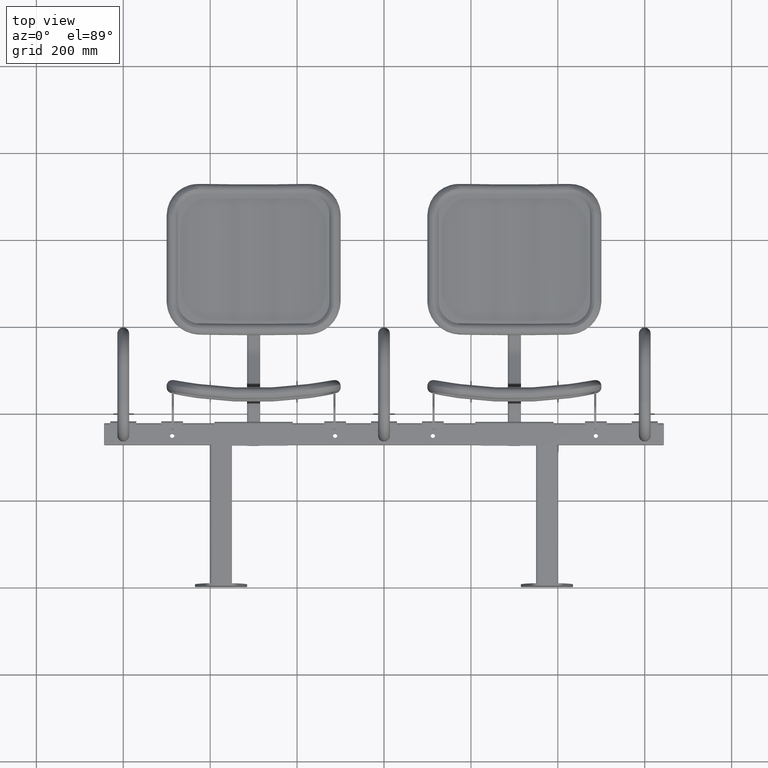
[diagram: clean part render]
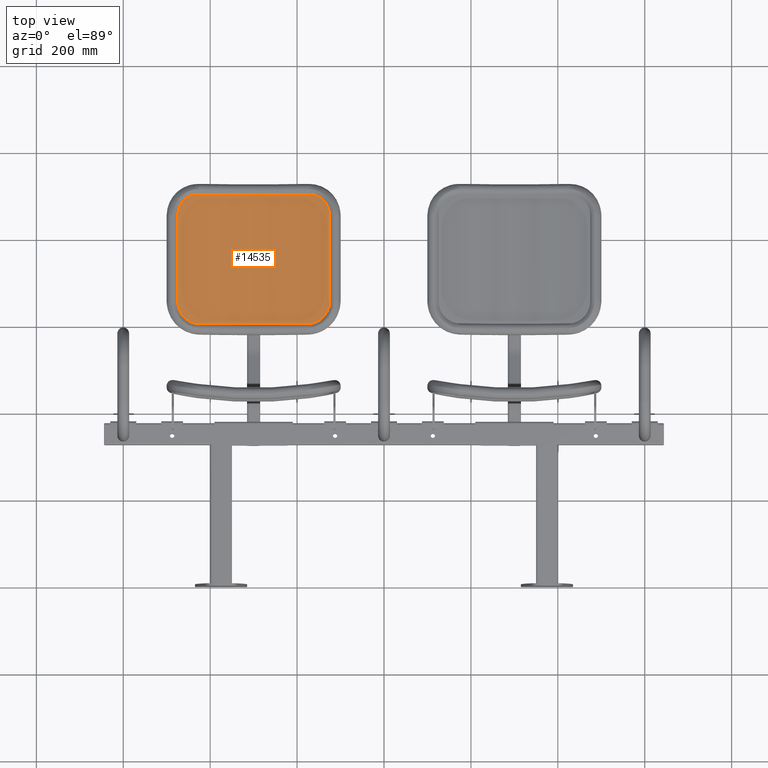
[diagram: same view with one face highlighted and labeled with its STEP entity id]
A machine part, top view. The second image highlights one B-rep face of the part: STEP entity #14535.
In plain terms, the highlighted cylindrical surface (partial cylindrical patch) has radius 922 mm, axis along (-0, 0.9925, -0.1219).
Its self-contained STEP definition (entity closure, byte-faithful):
#141 = AXIS2_PLACEMENT_3D ( 'NONE', #11130, #11125, #11127 ) ;
#270 = CARTESIAN_POINT ( 'NONE',  ( 133.5027708095076700, -4.043348160161209600, -150.0000000000000000 ) ) ;
#632 = CARTESIAN_POINT ( 'NONE',  ( 174.6780423094294300, 2.938127989232640800, 100.0000000000000000 ) ) ;
#2118 = VERTEX_POINT ( 'NONE', #270 ) ;
#3340 = EDGE_CURVE ( 'NONE', #15941, #15935, #9553, .T. ) ;
#3349 = EDGE_CURVE ( 'NONE', #15935, #15936, #4470, .T. ) ;
#3350 = EDGE_CURVE ( 'NONE', #15947, #2118, #4465, .T. ) ;
#4465 = CIRCLE ( 'NONE', #5178, 921.9999999999998900 ) ;
#4470 = CIRCLE ( 'NONE', #5177, 921.9999999999998900 ) ;
#5177 = AXIS2_PLACEMENT_3D ( 'NONE', #16096, #16097, #16098 ) ;
#5178 = AXIS2_PLACEMENT_3D ( 'NONE', #16101, #16102, #16103 ) ;
#5817 = CARTESIAN_POINT ( 'NONE',  ( 174.6780423094293400, 2.938127989232677700, -102.9767111701996900 ) ) ;
#5819 = CARTESIAN_POINT ( 'NONE',  ( 174.6780423094277000, 2.938127989229069900, -100.0000000000000000 ) ) ;
#5871 = CARTESIAN_POINT ( 'NONE',  ( 174.4252569109687800, 2.889249156995799400, -105.9095809351519500 ) ) ;
#5873 = CARTESIAN_POINT ( 'NONE',  ( 173.6823065029261100, 2.746533479585206100, -110.2458254922048400 ) ) ;
#5874 = CARTESIAN_POINT ( 'NONE',  ( 173.3736626402040300, 2.687343729852856200, -111.6806676315718500 ) ) ;
#5876 = CARTESIAN_POINT ( 'NONE',  ( 172.8179272435431000, 2.581180420399842700, -113.8168594006251100 ) ) ;
#5878 = CARTESIAN_POINT ( 'NONE',  ( 172.6171985542212000, 2.542893235740705000, -114.5262409831928100 ) ) ;
#5880 = CARTESIAN_POINT ( 'NONE',  ( 172.1842845498676400, 2.460491188602074600, -115.9395566754920600 ) ) ;
#5882 = CARTESIAN_POINT ( 'NONE',  ( 171.9515861540681700, 2.416279086558696900, -116.6449153591403000 ) ) ;
#5884 = CARTESIAN_POINT ( 'NONE',  ( 170.7138823299352700, 2.181677444009757900, -120.1406797326989000 ) ) ;
#5886 = CARTESIAN_POINT ( 'NONE',  ( 169.4991983137305700, 1.953047274785819400, -122.8105190491347500 ) ) ;
#5888 = CARTESIAN_POINT ( 'NONE',  ( 167.3512060475766000, 1.554827582412844600, -126.6316484380882800 ) ) ;
#5890 = CARTESIAN_POINT ( 'NONE',  ( 166.5805605887740900, 1.412827841483002900, -127.8745735445691900 ) ) ;
#5892 = CARTESIAN_POINT ( 'NONE',  ( 165.3411140186353800, 1.186313528368801600, -129.6919993142205100 ) ) ;
#5894 = CARTESIAN_POINT ( 'NONE',  ( 164.9140322696746600, 1.108553735959722200, -130.2899698321673700 ) ) ;
#5896 = CARTESIAN_POINT ( 'NONE',  ( 164.0315003009444900, 0.9485552417487855800, -131.4699633020638000 ) ) ;
#5897 = CARTESIAN_POINT ( 'NONE',  ( 163.5748653853536300, 0.8661043752936908900, -132.0533764078747100 ) ) ;
#5898 = CARTESIAN_POINT ( 'NONE',  ( 161.2387529999138600, 0.4462085634064498800, -134.9061564388811700 ) ) ;
#5899 = CARTESIAN_POINT ( 'NONE',  ( 159.1978465308786500, 0.08529606656501249900, -136.9917475094728700 ) ) ;
#5901 = CARTESIAN_POINT ( 'NONE',  ( 155.8851279581342100, -0.4871208554714147000, -139.8338622777737000 ) ) ;
#5902 = CARTESIAN_POINT ( 'NONE',  ( 154.7387530509506600, -0.6831380520290655200, -140.7332446702119200 ) ) ;
#5903 = CARTESIAN_POINT ( 'NONE',  ( 152.9546340337428200, -0.9844723836857178800, -142.0089234182692900 ) ) ;
#5905 = CARTESIAN_POINT ( 'NONE',  ( 152.3491529466003600, -1.086137138710676600, -142.4218997634149800 ) ) ;
#5907 = CARTESIAN_POINT ( 'NONE',  ( 151.1162202790401100, -1.291844430166143600, -143.2228952222699800 ) ) ;
#5908 = CARTESIAN_POINT ( 'NONE',  ( 150.4883261064795800, -1.395955851073583900, -143.6110605275198400 ) ) ;
#5909 = CARTESIAN_POINT ( 'NONE',  ( 147.3253740385165700, -1.916968884661652400, -145.4697822865375400 ) ) ;
#5910 = CARTESIAN_POINT ( 'NONE',  ( 144.6960490761461800, -2.339245843048198800, -146.7123967559648200 ) ) ;
#5912 = CARTESIAN_POINT ( 'NONE',  ( 140.6068619629395800, -2.976500450835516600, -148.2193977601141100 ) ) ;
#5913 = CARTESIAN_POINT ( 'NONE',  ( 139.2194630377412600, -3.189579564213771900, -148.6619021252992600 ) ) ;
#5914 = CARTESIAN_POINT ( 'NONE',  ( 136.3948739619451400, -3.616554344970484000, -149.4247097407211700 ) ) ;
#5916 = CARTESIAN_POINT ( 'NONE',  ( 134.9540972695986100, -3.830962291024167900, -149.7453999577484500 ) ) ;
#5918 = CARTESIAN_POINT ( 'NONE',  ( 133.5027708095076700, -4.043348160161209600, -150.0000000000000000 ) ) ;
#6001 = CARTESIAN_POINT ( 'NONE',  ( 174.6780423094276400, 2.938127989229100100, 0.0000000000000000000 ) ) ;
#6057 = DIRECTION ( 'NONE',  ( -0.0000000000000000000, -0.0000000000000000000, -1.000000000000000000 ) ) ;
#6063 = CARTESIAN_POINT ( 'NONE',  ( -136.4044524121475800, -3.618718563662579600, -149.4909703096117000 ) ) ;
#6073 = CARTESIAN_POINT ( 'NONE',  ( -133.5027708095150300, -4.043348160158284800, -150.0000000000000000 ) ) ;
#6080 = CARTESIAN_POINT ( 'NONE',  ( -139.2157402112301000, -3.193201298298841800, -148.7300908071784700 ) ) ;
#6082 = CARTESIAN_POINT ( 'NONE',  ( -143.3031395745495900, -2.556359719185635500, -147.2267049283003600 ) ) ;
#6084 = CARTESIAN_POINT ( 'NONE',  ( -144.6438899564408000, -2.344332376845247100, -146.6648703919832100 ) ) ;
#6087 = CARTESIAN_POINT ( 'NONE',  ( -146.6220860598248200, -2.027162559964417200, -145.7298554267849800 ) ) ;
#6090 = CARTESIAN_POINT ( 'NONE',  ( -147.2759889221212900, -1.921585602901901400, -145.4027849053079300 ) ) ;
#6092 = CARTESIAN_POINT ( 'NONE',  ( -148.5726483527038200, -1.710821201565750500, -144.7173727561183200 ) ) ;
#6095 = CARTESIAN_POINT ( 'NONE',  ( -149.2169678934316400, -1.605374842082262400, -144.3580730241737600 ) ) ;
#6098 = CARTESIAN_POINT ( 'NONE',  ( -152.3844638327494200, -1.083632167137132500, -142.4972107034067800 ) ) ;
#6101 = CARTESIAN_POINT ( 'NONE',  ( -154.7532591195762600, -0.6826354278457768000, -140.8022876210274600 ) ) ;
#6104 = CARTESIAN_POINT ( 'NONE',  ( -158.0685886014815900, -0.1098646472610107000, -137.9618855153419800 ) ) ;
#6107 = CARTESIAN_POINT ( 'NONE',  ( -159.1338203578423800, 0.07624399679278519300, -136.9651220025052700 ) ) ;
#6110 = CARTESIAN_POINT ( 'NONE',  ( -160.6710205796737200, 0.3473898814974699700, -135.3938462974307700 ) ) ;
#6112 = CARTESIAN_POINT ( 'NONE',  ( -161.1732984616822900, 0.4364335548314541800, -134.8573813391294900 ) ) ;
#6115 = CARTESIAN_POINT ( 'NONE',  ( -162.1572907833169400, 0.6116837531127629100, -133.7586132477186700 ) ) ;
#6118 = CARTESIAN_POINT ( 'NONE',  ( -162.6382829059245400, 0.6977635892723492700, -133.1969790404442600 ) ) ;
#6121 = CARTESIAN_POINT ( 'NONE',  ( -164.9687295435143100, 1.116632361648125300, -130.3517139942909200 ) ) ;
#6124 = CARTESIAN_POINT ( 'NONE',  ( -166.6149145823608800, 1.418353854519800900, -127.9372995264752000 ) ) ;
#6127 = CARTESIAN_POINT ( 'NONE',  ( -168.7673811361679800, 1.817360527010247500, -124.1144138570340200 ) ) ;
#6130 = CARTESIAN_POINT ( 'NONE',  ( -169.4317598822122500, 1.941394612183192000, -122.8063802993798100 ) ) ;
#6132 = CARTESIAN_POINT ( 'NONE',  ( -170.6523357711537900, 2.170431089114700700, -120.1215041083181900 ) ) ;
#6135 = CARTESIAN_POINT ( 'NONE',  ( -171.2095691463161700, 2.275633990467209600, -118.7401357903834500 ) ) ;
#6138 = CARTESIAN_POINT ( 'NONE',  ( -172.6868317126451300, 2.555639529861443800, -114.5693454951728300 ) ) ;
#6141 = CARTESIAN_POINT ( 'NONE',  ( -173.4255939864389100, 2.697224416701996300, -111.7314858990513500 ) ) ;
#6144 = CARTESIAN_POINT ( 'NONE',  ( -174.1725968260297700, 2.840713097092864000, -107.3904394198565100 ) ) ;
#6147 = CARTESIAN_POINT ( 'NONE',  ( -174.3610627241996300, 2.877015158256031500, -105.9293014465063200 ) ) ;
#6150 = CARTESIAN_POINT ( 'NONE',  ( -174.5507831765804400, 2.913580320993418100, -103.7158953305182900 ) ) ;
#6152 = CARTESIAN_POINT ( 'NONE',  ( -174.5985353192888900, 2.922790154322341600, -102.9733979338756000 ) ) ;
#6155 = CARTESIAN_POINT ( 'NONE',  ( -174.6621354910554700, 2.935058333662315300, -101.4874028404083200 ) ) ;
#6158 = CARTESIAN_POINT ( 'NONE',  ( -174.6780423094276700, 2.938127989229069900, -100.7439361827915900 ) ) ;
#6161 = CARTESIAN_POINT ( 'NONE',  ( -174.6780423094277000, 2.938127989229081900, -100.0000000000000000 ) ) ;
#6168 = ORIENTED_EDGE ( 'NONE', *, *, #17051, .T. ) ;
#6172 = ORIENTED_EDGE ( 'NONE', *, *, #3349, .T. ) ;
#6175 = ORIENTED_EDGE ( 'NONE', *, *, #3340, .T. ) ;
#6178 = ORIENTED_EDGE ( 'NONE', *, *, #17055, .T. ) ;
#6181 = ORIENTED_EDGE ( 'NONE', *, *, #17042, .T. ) ;
#6184 = ORIENTED_EDGE ( 'NONE', *, *, #3350, .F. ) ;
#6186 = ORIENTED_EDGE ( 'NONE', *, *, #17032, .T. ) ;
#6189 = ORIENTED_EDGE ( 'NONE', *, *, #17039, .T. ) ;
#6326 = CARTESIAN_POINT ( 'NONE',  ( 133.5027708095076900, -4.043348160161192700, 150.0000000000000000 ) ) ;
#6328 = CARTESIAN_POINT ( 'NONE',  ( 136.4044524121483200, -3.618718563662441000, 149.4909703096116400 ) ) ;
#6342 = CARTESIAN_POINT ( 'NONE',  ( 139.2157402112238200, -3.193201298299714900, 148.7300908071803700 ) ) ;
#6344 = CARTESIAN_POINT ( 'NONE',  ( 143.3031395745439300, -2.556359719186442900, 147.2267049283025500 ) ) ;
#6347 = CARTESIAN_POINT ( 'NONE',  ( 144.6438899564353200, -2.344332376846201000, 146.6648703919855400 ) ) ;
#6349 = CARTESIAN_POINT ( 'NONE',  ( 146.6220860598195900, -2.027162559965339600, 145.7298554267874800 ) ) ;
#6352 = CARTESIAN_POINT ( 'NONE',  ( 147.2759889221161700, -1.921585602902800000, 145.4027849053104800 ) ) ;
#6355 = CARTESIAN_POINT ( 'NONE',  ( 148.5726483526988500, -1.710821201566628200, 144.7173727561209900 ) ) ;
#6358 = CARTESIAN_POINT ( 'NONE',  ( 149.2169678934267000, -1.605374842083110200, 144.3580730241763500 ) ) ;
#6360 = CARTESIAN_POINT ( 'NONE',  ( 152.3844638327451300, -1.083632167137888800, 142.4972107034095600 ) ) ;
#6363 = CARTESIAN_POINT ( 'NONE',  ( 154.7532591195726200, -0.6826354278463492300, 140.8022876210304200 ) ) ;
#6365 = CARTESIAN_POINT ( 'NONE',  ( 158.0685886014783800, -0.1098646472614986900, 137.9618855153448200 ) ) ;
#6367 = CARTESIAN_POINT ( 'NONE',  ( 159.1338203578393400, 0.07624399679224898300, 136.9651220025082000 ) ) ;
#6370 = CARTESIAN_POINT ( 'NONE',  ( 160.6710205796708200, 0.3473898814969710900, 135.3938462974336400 ) ) ;
#6373 = CARTESIAN_POINT ( 'NONE',  ( 161.1732984616796200, 0.4364335548311996700, 134.8573813391325900 ) ) ;
#6376 = CARTESIAN_POINT ( 'NONE',  ( 162.1572907833144100, 0.6116837531125318700, 133.7586132477217400 ) ) ;
#6379 = CARTESIAN_POINT ( 'NONE',  ( 162.6382829059219500, 0.6977635892719202800, 133.1969790404470200 ) ) ;
#6382 = CARTESIAN_POINT ( 'NONE',  ( 164.9687295435123200, 1.116632361647790000, 130.3517139942935600 ) ) ;
#6385 = CARTESIAN_POINT ( 'NONE',  ( 166.6149145823592300, 1.418353854519284200, 127.9372995264775900 ) ) ;
#6387 = CARTESIAN_POINT ( 'NONE',  ( 168.7673811361666200, 1.817360527009802600, 124.1144138570360700 ) ) ;
#6389 = CARTESIAN_POINT ( 'NONE',  ( 169.4317598822111400, 1.941394612182911500, 122.8063802993819100 ) ) ;
#6392 = CARTESIAN_POINT ( 'NONE',  ( 170.6523357711529300, 2.170431089114456900, 120.1215041083201400 ) ) ;
#6394 = CARTESIAN_POINT ( 'NONE',  ( 171.2095691463154600, 2.275633990467107000, 118.7401357903853100 ) ) ;
#6397 = CARTESIAN_POINT ( 'NONE',  ( 172.6868317126446200, 2.555639529861405600, 114.5693454951741200 ) ) ;
#6400 = CARTESIAN_POINT ( 'NONE',  ( 173.4255939864386600, 2.697224416701903900, 111.7314858990523000 ) ) ;
#6403 = CARTESIAN_POINT ( 'NONE',  ( 174.1725968260296900, 2.840713097092797800, 107.3904394198571000 ) ) ;
#6406 = CARTESIAN_POINT ( 'NONE',  ( 174.3610627241994000, 2.877015158256080800, 105.9293014465067600 ) ) ;
#6408 = CARTESIAN_POINT ( 'NONE',  ( 174.5507831765803000, 2.913580320993474500, 103.7158953305186200 ) ) ;
#6410 = CARTESIAN_POINT ( 'NONE',  ( 174.5985353192888000, 2.922790154322271000, 102.9733979338758200 ) ) ;
#6412 = CARTESIAN_POINT ( 'NONE',  ( 174.6621354910553800, 2.935058333662245600, 101.4874028404083900 ) ) ;
#6414 = CARTESIAN_POINT ( 'NONE',  ( 174.6780423094276700, 2.938127989229131700, 100.7439361827916900 ) ) ;
#6417 = CARTESIAN_POINT ( 'NONE',  ( 174.6780423094294300, 2.938127989232640800, 100.0000000000000000 ) ) ;
#6457 = CARTESIAN_POINT ( 'NONE',  ( -174.6780423094276400, 2.938127989229100100, 0.0000000000000000000 ) ) ;
#8467 = LINE ( 'NONE', #6001, #8472 ) ;
#8472 = VECTOR ( 'NONE', #6057, 1000.000000000000000 ) ;
#8483 = LINE ( 'NONE', #6457, #8485 ) ;
#8485 = VECTOR ( 'NONE', #13833, 1000.000000000000000 ) ;
#8817 = B_SPLINE_CURVE_WITH_KNOTS ( 'NONE', 3,
 ( #6326, #6328, #6342, #6344, #6347, #6349, #6352, #6355, #6358, #6360, #6363, #6365, #6367, #6370, #6373, #6376, #6379, #6382, #6385, #6387, #6389, #6392, #6394, #6397, #6400, #6403, #6406, #6408, #6410, #6412, #6414, #6417 ),
 .UNSPECIFIED., .F., .F.,
 ( 4, 2, 2, 2, 2, 2, 2, 2, 2, 2, 2, 2, 2, 2, 2, 4 ),
 ( 8.606610732756654000E-016, 0.008802556550099940900, 0.01320383482514949500, 0.01540447396267425300, 0.01760511310019901100, 0.02640766965029801200, 0.03080894792534751000, 0.03300958706287229100, 0.03521022620039706400, 0.04401278275049643600, 0.04841406102554610100, 0.05281533930059576600, 0.06161789585069513100, 0.06601917412574483100, 0.06821981326326970200, 0.07042045240079457300 ),
 .UNSPECIFIED. ) ;
#8860 = B_SPLINE_CURVE_WITH_KNOTS ( 'NONE', 3,
 ( #6073, #6063, #6080, #6082, #6084, #6087, #6090, #6092, #6095, #6098, #6101, #6104, #6107, #6110, #6112, #6115, #6118, #6121, #6124, #6127, #6130, #6132, #6135, #6138, #6141, #6144, #6147, #6150, #6152, #6155, #6158, #6161 ),
 .UNSPECIFIED., .F., .F.,
 ( 4, 2, 2, 2, 2, 2, 2, 2, 2, 2, 2, 2, 2, 2, 2, 4 ),
 ( 8.428640294997401100E-015, 0.008802556550107020300, 0.01320383482515630000, 0.01540447396268092500, 0.01760511310020554700, 0.02640766965030383000, 0.03080894792535294700, 0.03300958706287754300, 0.03521022620040213000, 0.04401278275050032200, 0.04841406102554943200, 0.05281533930059854900, 0.06161789585069681100, 0.06601917412574592700, 0.06821981326327052100, 0.07042045240079510000 ),
 .UNSPECIFIED. ) ;
#8863 = B_SPLINE_CURVE_WITH_KNOTS ( 'NONE', 3,
 ( #5819, #5817, #5871, #5873, #5874, #5876, #5878, #5880, #5882, #5884, #5886, #5888, #5890, #5892, #5894, #5896, #5897, #5898, #5899, #5901, #5902, #5903, #5905, #5907, #5908, #5909, #5910, #5912, #5913, #5914, #5916, #5918 ),
 .UNSPECIFIED., .F., .F.,
 ( 4, 2, 2, 2, 2, 2, 2, 2, 2, 2, 2, 2, 2, 2, 2, 4 ),
 ( 3.927108981965563000E-016, 0.008803417324603624400, 0.01320512598690524000, 0.01540598031805603600, 0.01760683464920683200, 0.02641025197380998000, 0.03081196063611156600, 0.03301281496726236200, 0.03521366929841315800, 0.04401708662301644800, 0.04841879528531810300, 0.05061964961646892000, 0.05282050394761975100, 0.06162392127222313100, 0.06602562993452476500, 0.07042733859682641400 ),
 .UNSPECIFIED. ) ;
#9553 = B_SPLINE_CURVE_WITH_KNOTS ( 'NONE', 3,
 ( #16245, #16232, #16240, #16246, #15961, #15962, #15963, #15964, #15965, #15966, #15967, #15968, #15969, #15970, #15971, #15972, #15973, #15974, #15975, #15976, #15977, #15978, #15979, #15980, #15981, #15982, #15983, #15984, #15985, #15986, #15987, #15988 ),
 .UNSPECIFIED., .F., .F.,
 ( 4, 2, 2, 2, 2, 2, 2, 2, 2, 2, 2, 2, 2, 2, 2, 4 ),
 ( 0.0000000000000000000, 0.008803417324602391000, 0.01320512598690356400, 0.01540598031805417300, 0.01760683464920477900, 0.02641025197380710000, 0.03081196063610820400, 0.03301281496725878800, 0.03521366929840937700, 0.04401708662301172200, 0.04841879528531291300, 0.05061964961646353600, 0.05282050394761415900, 0.06162392127221670600, 0.06602562993451799300, 0.07042733859681928100 ),
 .UNSPECIFIED. ) ;
#10346 = VERTEX_POINT ( 'NONE', #12802 ) ;
#11125 = DIRECTION ( 'NONE',  ( -0.0000000000000000000, -0.0000000000000000000, -1.000000000000000000 ) ) ;
#11127 = DIRECTION ( 'NONE',  ( -1.000000000000000000, 0.0000000000000000000, 0.0000000000000000000 ) ) ;
#11130 = CARTESIAN_POINT ( 'NONE',  ( 0.0000000000000000000, 908.2400563727633200, 150.0000000000000000 ) ) ;
#12479 = EDGE_LOOP ( 'NONE', ( #6189, #6186, #6184, #6181, #6178, #6175, #6172, #6168 ) ) ;
#12802 = CARTESIAN_POINT ( 'NONE',  ( 174.6780423094277000, 2.938127989229069900, -100.0000000000000000 ) ) ;
#13127 = FACE_OUTER_BOUND ( 'NONE', #12479, .T. ) ;
#13131 = CYLINDRICAL_SURFACE ( 'NONE', #141, 921.9999999999998900 ) ;
#13262 = VERTEX_POINT ( 'NONE', #632 ) ;
#13833 = DIRECTION ( 'NONE',  ( 0.0000000000000000000, 0.0000000000000000000, 1.000000000000000000 ) ) ;
#14535 = ADVANCED_FACE ( 'NONE', ( #13127 ), #13131, .F. ) ;
#15935 = VERTEX_POINT ( 'NONE', #17514 ) ;
#15936 = VERTEX_POINT ( 'NONE', #17515 ) ;
#15941 = VERTEX_POINT ( 'NONE', #17520 ) ;
#15947 = VERTEX_POINT ( 'NONE', #17526 ) ;
#15953 = VERTEX_POINT ( 'NONE', #17532 ) ;
#15961 = CARTESIAN_POINT ( 'NONE',  ( -173.3736626402041700, 2.687343729852773100, 111.6806676315702900 ) ) ;
#15962 = CARTESIAN_POINT ( 'NONE',  ( -172.8179272435433500, 2.581180420399785500, 113.8168594006234100 ) ) ;
#15963 = CARTESIAN_POINT ( 'NONE',  ( -172.6171985542216600, 2.542893235740781400, 114.5262409831910900 ) ) ;
#15964 = CARTESIAN_POINT ( 'NONE',  ( -172.1842845498681500, 2.460491188602168800, 115.9395566754901700 ) ) ;
#15965 = CARTESIAN_POINT ( 'NONE',  ( -171.9515861540688800, 2.416279086558927900, 116.6449153591384100 ) ) ;
#15966 = CARTESIAN_POINT ( 'NONE',  ( -170.7138823299361500, 2.181677444010035500, 120.1406797326967500 ) ) ;
#15967 = CARTESIAN_POINT ( 'NONE',  ( -169.4991983137317100, 1.953047274786017000, 122.8105190491324400 ) ) ;
#15968 = CARTESIAN_POINT ( 'NONE',  ( -167.3512060475781000, 1.554827582413115000, 126.6316484380856600 ) ) ;
#15969 = CARTESIAN_POINT ( 'NONE',  ( -166.5805605887757700, 1.412827841483428100, 127.8745735445665200 ) ) ;
#15970 = CARTESIAN_POINT ( 'NONE',  ( -165.3411140186372800, 1.186313528369269400, 129.6919993142177200 ) ) ;
#15971 = CARTESIAN_POINT ( 'NONE',  ( -164.9140322696765100, 1.108553735960062300, 130.2899698321644500 ) ) ;
#15972 = CARTESIAN_POINT ( 'NONE',  ( -164.0315003009465600, 0.9485552417491554000, 131.4699633020608200 ) ) ;
#15973 = CARTESIAN_POINT ( 'NONE',  ( -163.5748653853558800, 0.8661043752940986700, 132.0533764078717500 ) ) ;
#15974 = CARTESIAN_POINT ( 'NONE',  ( -161.2387529999165600, 0.4462085634069267700, 134.9061564388781600 ) ) ;
#15975 = CARTESIAN_POINT ( 'NONE',  ( -159.1978465308816300, 0.08529606656551852500, 136.9917475094698600 ) ) ;
#15976 = CARTESIAN_POINT ( 'NONE',  ( -155.8851279581378200, -0.4871208554708224000, 139.8338622777707200 ) ) ;
#15977 = CARTESIAN_POINT ( 'NONE',  ( -154.7387530509545900, -0.6831380520284142700, 140.7332446702091000 ) ) ;
#15978 = CARTESIAN_POINT ( 'NONE',  ( -152.9546340337470000, -0.9844723836850226600, 142.0089234182664200 ) ) ;
#15979 = CARTESIAN_POINT ( 'NONE',  ( -152.3491529466046500, -1.086137138709850400, 142.4218997634122600 ) ) ;
#15980 = CARTESIAN_POINT ( 'NONE',  ( -151.1162202790446000, -1.291844430165286900, 143.2228952222672500 ) ) ;
#15981 = CARTESIAN_POINT ( 'NONE',  ( -150.4883261064841200, -1.395955851072827400, 143.6110605275170800 ) ) ;
#15982 = CARTESIAN_POINT ( 'NONE',  ( -147.3253740385216300, -1.916968884660838600, 145.4697822865349500 ) ) ;
#15983 = CARTESIAN_POINT ( 'NONE',  ( -144.6960490761516700, -2.339245843047391000, 146.7123967559623200 ) ) ;
#15984 = CARTESIAN_POINT ( 'NONE',  ( -140.6068619629455700, -2.976500450834642200, 148.2193977601120300 ) ) ;
#15985 = CARTESIAN_POINT ( 'NONE',  ( -139.2194630377474600, -3.189579564212846400, 148.6619021252973600 ) ) ;
#15986 = CARTESIAN_POINT ( 'NONE',  ( -136.3948739619516700, -3.616554344969511400, 149.4247097407194600 ) ) ;
#15987 = CARTESIAN_POINT ( 'NONE',  ( -134.9540972695988900, -3.830962291024016900, 149.7453999577483600 ) ) ;
#15988 = CARTESIAN_POINT ( 'NONE',  ( -133.5027708095146900, -4.043348160158411800, 150.0000000000000000 ) ) ;
#16096 = CARTESIAN_POINT ( 'NONE',  ( 0.0000000000000000000, 908.2400563727633200, 150.0000000000000000 ) ) ;
#16097 = DIRECTION ( 'NONE',  ( 0.0000000000000000000, 0.0000000000000000000, 1.000000000000000000 ) ) ;
#16098 = DIRECTION ( 'NONE',  ( 1.000000000000000000, 0.0000000000000000000, 0.0000000000000000000 ) ) ;
#16101 = CARTESIAN_POINT ( 'NONE',  ( 0.0000000000000000000, 908.2400563727633200, -150.0000000000000000 ) ) ;
#16102 = DIRECTION ( 'NONE',  ( 0.0000000000000000000, 0.0000000000000000000, 1.000000000000000000 ) ) ;
#16103 = DIRECTION ( 'NONE',  ( 1.000000000000000000, 0.0000000000000000000, 0.0000000000000000000 ) ) ;
#16232 = CARTESIAN_POINT ( 'NONE',  ( -174.6780423094293400, 2.938127989232672800, 102.9767111701994100 ) ) ;
#16240 = CARTESIAN_POINT ( 'NONE',  ( -174.4252569109689300, 2.889249156995811900, 105.9095809351510100 ) ) ;
#16245 = CARTESIAN_POINT ( 'NONE',  ( -174.6780423094293200, 2.938127989232692400, 100.0000000000000000 ) ) ;
#16246 = CARTESIAN_POINT ( 'NONE',  ( -173.6823065029263400, 2.746533479585251800, 110.2458254922035100 ) ) ;
#17032 = EDGE_CURVE ( 'NONE', #10346, #2118, #8863, .T. ) ;
#17039 = EDGE_CURVE ( 'NONE', #13262, #10346, #8467, .T. ) ;
#17042 = EDGE_CURVE ( 'NONE', #15947, #15953, #8860, .T. ) ;
#17051 = EDGE_CURVE ( 'NONE', #15936, #13262, #8817, .T. ) ;
#17055 = EDGE_CURVE ( 'NONE', #15953, #15941, #8483, .T. ) ;
#17514 = CARTESIAN_POINT ( 'NONE',  ( -133.5027708095146900, -4.043348160158411800, 150.0000000000000000 ) ) ;
#17515 = CARTESIAN_POINT ( 'NONE',  ( 133.5027708095076900, -4.043348160161192700, 150.0000000000000000 ) ) ;
#17520 = CARTESIAN_POINT ( 'NONE',  ( -174.6780423094293200, 2.938127989232692400, 100.0000000000000000 ) ) ;
#17526 = CARTESIAN_POINT ( 'NONE',  ( -133.5027708095150300, -4.043348160158284800, -150.0000000000000000 ) ) ;
#17532 = CARTESIAN_POINT ( 'NONE',  ( -174.6780423094277000, 2.938127989229081900, -100.0000000000000000 ) ) ;